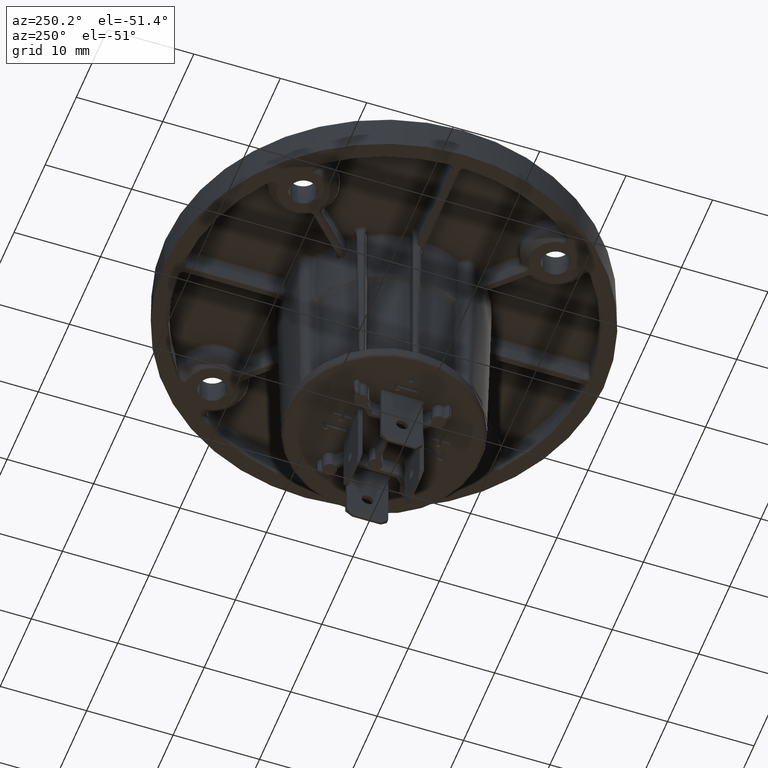
[diagram: clean part render]
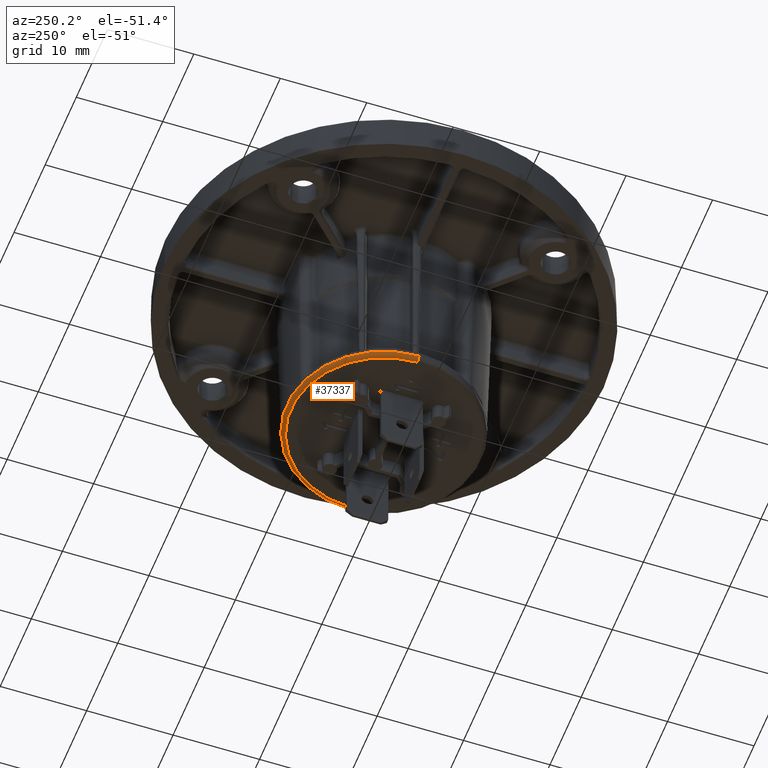
[diagram: same view with one face highlighted and labeled with its STEP entity id]
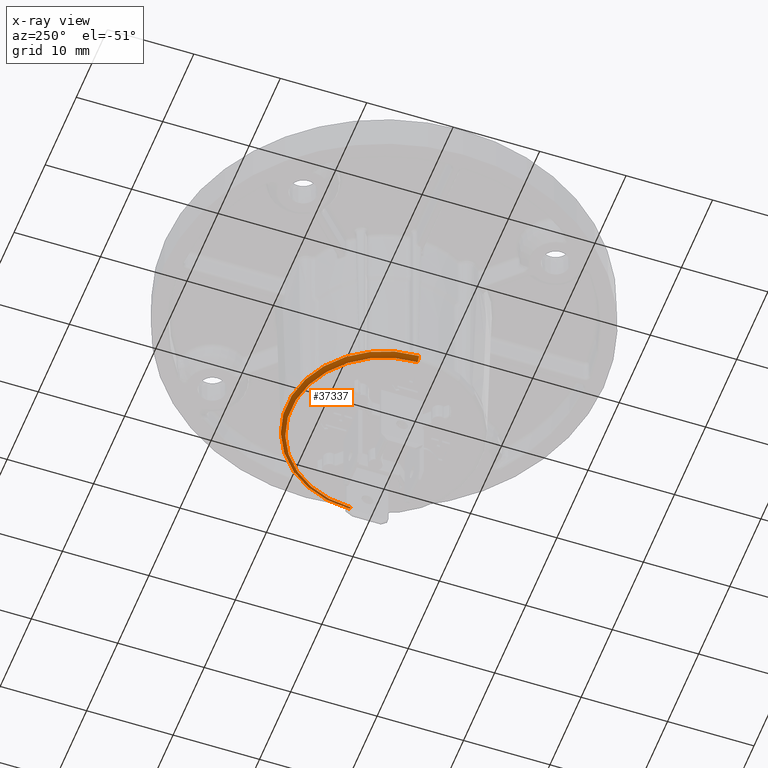
[diagram: x-ray of the same camera — body ghosted, the highlighted face saturated]
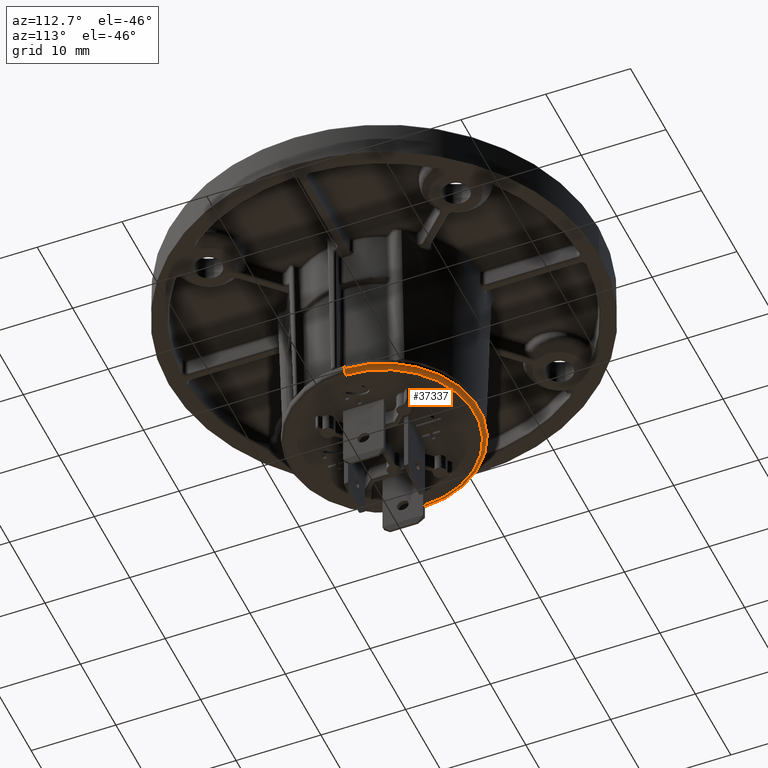
[diagram: same view with one face highlighted and labeled with its STEP entity id]
A machine part, auxiliary view. The second image highlights one B-rep face of the part: STEP entity #37337.
The next image is the same camera in x-ray: the body ghosted, the highlighted face saturated — about 1% of this face is hidden behind the body in this view.
A second angle (auxiliary view) of the same face is appended — the face is thin or edge-on in the first view.
In plain terms, the highlighted toroidal blend (fillet) surface has major radius 10.7412 mm and minor (blend) radius 0.5 mm.
Its self-contained STEP definition (entity closure, byte-faithful):
#10036=CARTESIAN_POINT('',(0.E0,0.E0,-1.845872620322E1));
#10037=DIRECTION('',(0.E0,0.E0,-1.E0));
#10038=DIRECTION('',(-1.E0,0.E0,0.E0));
#10039=AXIS2_PLACEMENT_3D('',#10036,#10037,#10038);
#10045=CARTESIAN_POINT('',(-1.074119630351E1,0.E0,-1.845E1));
#10046=DIRECTION('',(0.E0,1.E0,0.E0));
#10047=DIRECTION('',(0.E0,0.E0,-1.E0));
#10048=AXIS2_PLACEMENT_3D('',#10045,#10046,#10047);
#10050=CARTESIAN_POINT('',(0.E0,0.E0,-1.895E1));
#10051=DIRECTION('',(0.E0,0.E0,-1.E0));
#10052=DIRECTION('',(-1.E0,0.E0,0.E0));
#10053=AXIS2_PLACEMENT_3D('',#10050,#10051,#10052);
#10750=CARTESIAN_POINT('',(1.074119630351E1,0.E0,-1.845E1));
#10751=DIRECTION('',(0.E0,-1.E0,0.E0));
#10752=DIRECTION('',(0.E0,0.E0,-1.E0));
#10753=AXIS2_PLACEMENT_3D('',#10750,#10751,#10752);
#23877=CARTESIAN_POINT('',(-1.074119630351E1,-1.299774406363E-14,-1.895E1));
#23878=CARTESIAN_POINT('',(1.074119630351E1,1.431318123084E-14,-1.895E1));
#23879=VERTEX_POINT('',#23877);
#23880=VERTEX_POINT('',#23878);
#23881=CARTESIAN_POINT('',(-1.124112015109E1,0.E0,-1.845872620322E1));
#23882=CARTESIAN_POINT('',(1.124112015109E1,0.E0,-1.845872620322E1));
#23883=VERTEX_POINT('',#23881);
#23884=VERTEX_POINT('',#23882);
#37323=CARTESIAN_POINT('',(0.E0,0.E0,-1.845E1));
#37324=DIRECTION('',(0.E0,0.E0,-1.E0));
#37325=DIRECTION('',(-9.999903365645E-1,-4.396223113850E-3,0.E0));
#37326=AXIS2_PLACEMENT_3D('',#37323,#37324,#37325);
#37327=TOROIDAL_SURFACE('',#37326,1.074119630351E1,5.E-1);
#37329=ORIENTED_EDGE('',*,*,#37328,.T.);
#37331=ORIENTED_EDGE('',*,*,#37330,.T.);
#37332=ORIENTED_EDGE('',*,*,#37313,.F.);
#37334=ORIENTED_EDGE('',*,*,#37333,.F.);
#37335=EDGE_LOOP('',(#37329,#37331,#37332,#37334));
#37336=FACE_OUTER_BOUND('',#37335,.F.);
#37337=ADVANCED_FACE('',(#37336),#37327,.T.);
#10040=CIRCLE('',#10039,1.124112015109E1);
#10049=CIRCLE('',#10048,5.E-1);
#10054=CIRCLE('',#10053,1.074119630351E1);
#10754=CIRCLE('',#10753,5.E-1);
#37313=EDGE_CURVE('',#23883,#23884,#10040,.T.);
#37328=EDGE_CURVE('',#23879,#23880,#10054,.T.);
#37330=EDGE_CURVE('',#23880,#23884,#10754,.T.);
#37333=EDGE_CURVE('',#23879,#23883,#10049,.T.);